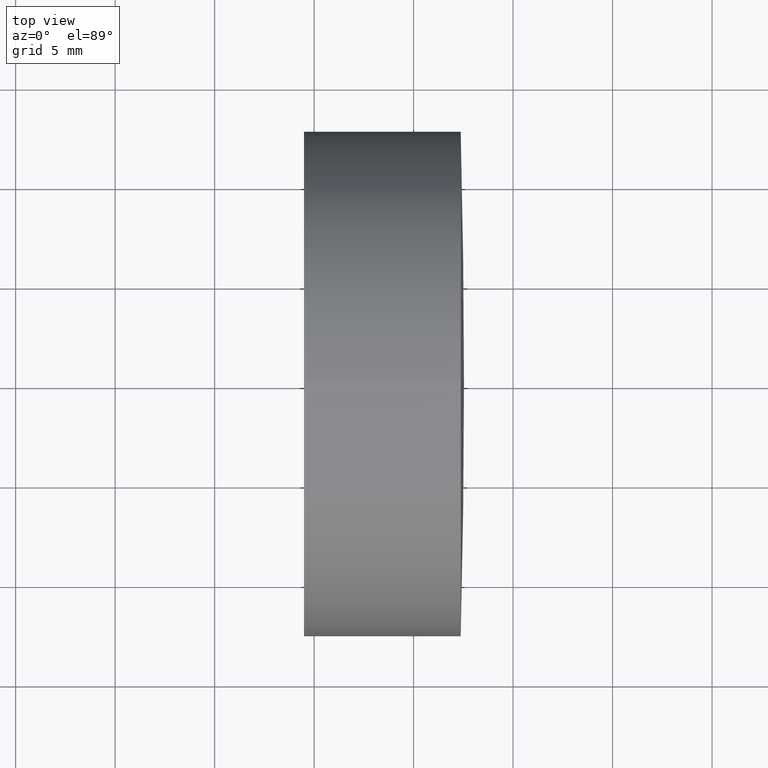
[diagram: clean part render]
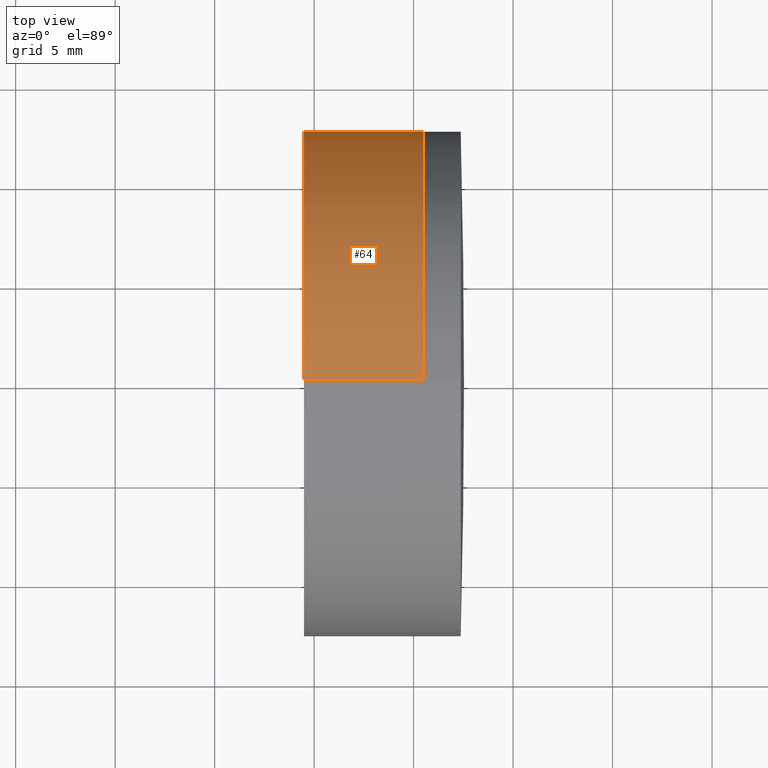
[diagram: same view with one face highlighted and labeled with its STEP entity id]
A machine part, top view. The second image highlights one B-rep face of the part: STEP entity #64.
In plain terms, the highlighted cylindrical surface (partial cylindrical patch) has radius 12.7 mm, axis along (-1, -0, 0).
Its self-contained STEP definition (entity closure, byte-faithful):
#1 = CARTESIAN_POINT ( 'NONE',  ( 144.4937671120052900, 1.555301434917136300E-015, -12.70000000000005300 ) ) ;
#16 = LINE ( 'NONE', #99, #283 ) ;
#18 = CIRCLE ( 'NONE', #276, 12.69999999999999000 ) ;
#20 = DIRECTION ( 'NONE',  ( -1.000000000000000000, -0.0000000000000000000, 2.184929092829751300E-016 ) ) ;
#23 = CARTESIAN_POINT ( 'NONE',  ( 150.5048937077423800, 1.555301434917137400E-015, -12.70000000000004400 ) ) ;
#30 = CARTESIAN_POINT ( 'NONE',  ( -185.2744740506581700, 0.0000000000000000000, 2.052032605930108700E-014 ) ) ;
#33 = ORIENTED_EDGE ( 'NONE', *, *, #142, .T. ) ;
#54 = CARTESIAN_POINT ( 'NONE',  ( 144.4937671120052900, 0.0000000000000000000, 12.69999999999993400 ) ) ;
#64 = ADVANCED_FACE ( 'NONE', ( #269 ), #241, .T. ) ;
#72 = ORIENTED_EDGE ( 'NONE', *, *, #242, .F. ) ;
#75 = CIRCLE ( 'NONE', #244, 12.69999999999999000 ) ;
#92 = DIRECTION ( 'NONE',  ( -1.000000000000000000, -0.0000000000000000000, 2.184929092829751300E-016 ) ) ;
#98 = DIRECTION ( 'NONE',  ( -1.000000000000000000, -0.0000000000000000000, 2.184929092829751300E-016 ) ) ;
#99 = CARTESIAN_POINT ( 'NONE',  ( -185.2744740506581700, 0.0000000000000000000, 12.70000000000001200 ) ) ;
#103 = CARTESIAN_POINT ( 'NONE',  ( 150.5048937077423800, 0.0000000000000000000, 12.69999999999993900 ) ) ;
#111 = DIRECTION ( 'NONE',  ( 0.0000000000000000000, 0.0000000000000000000, 1.000000000000000000 ) ) ;
#142 = EDGE_CURVE ( 'NONE', #304, #337, #188, .T. ) ;
#149 = VERTEX_POINT ( 'NONE', #54 ) ;
#176 = DIRECTION ( 'NONE',  ( 0.0000000000000000000, 0.0000000000000000000, 1.000000000000000000 ) ) ;
#188 = LINE ( 'NONE', #323, #238 ) ;
#194 = ORIENTED_EDGE ( 'NONE', *, *, #234, .T. ) ;
#205 = DIRECTION ( 'NONE',  ( -1.000000000000000000, -0.0000000000000000000, 2.184929092829751300E-016 ) ) ;
#208 = VERTEX_POINT ( 'NONE', #103 ) ;
#222 = DIRECTION ( 'NONE',  ( -1.000000000000000000, -0.0000000000000000000, 2.184929092829751300E-016 ) ) ;
#234 = EDGE_CURVE ( 'NONE', #208, #304, #75, .T. ) ;
#238 = VECTOR ( 'NONE', #222, 1000.000000000000000 ) ;
#241 = CYLINDRICAL_SURFACE ( 'NONE', #326, 12.69999999999999000 ) ;
#242 = EDGE_CURVE ( 'NONE', #208, #149, #16, .T. ) ;
#244 = AXIS2_PLACEMENT_3D ( 'NONE', #258, #205, #176 ) ;
#255 = EDGE_CURVE ( 'NONE', #149, #337, #18, .T. ) ;
#258 = CARTESIAN_POINT ( 'NONE',  ( 150.5048937077423800, 0.0000000000000000000, -5.284508487942986600E-014 ) ) ;
#269 = FACE_OUTER_BOUND ( 'NONE', #331, .T. ) ;
#273 = ORIENTED_EDGE ( 'NONE', *, *, #255, .F. ) ;
#276 = AXIS2_PLACEMENT_3D ( 'NONE', #308, #98, #293 ) ;
#283 = VECTOR ( 'NONE', #20, 1000.000000000000000 ) ;
#293 = DIRECTION ( 'NONE',  ( 0.0000000000000000000, 0.0000000000000000000, 1.000000000000000000 ) ) ;
#304 = VERTEX_POINT ( 'NONE', #23 ) ;
#308 = CARTESIAN_POINT ( 'NONE',  ( 144.4937671120052900, 0.0000000000000000000, -5.153169634145900400E-014 ) ) ;
#323 = CARTESIAN_POINT ( 'NONE',  ( -185.2744740506581700, 1.555301434917137400E-015, -12.69999999999997100 ) ) ;
#326 = AXIS2_PLACEMENT_3D ( 'NONE', #30, #92, #111 ) ;
#331 = EDGE_LOOP ( 'NONE', ( #194, #33, #273, #72 ) ) ;
#337 = VERTEX_POINT ( 'NONE', #1 ) ;